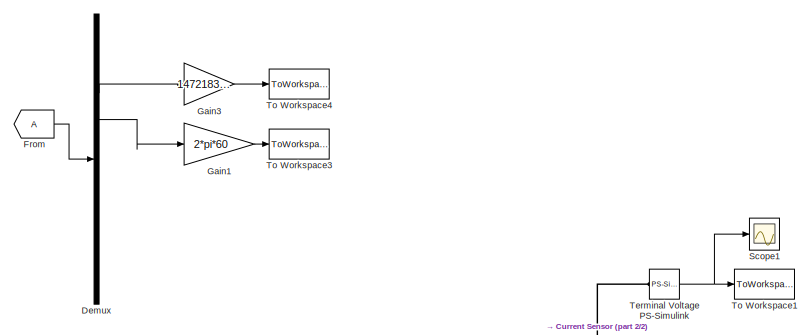
[diagram: root canvas - part 1/2, top center region]
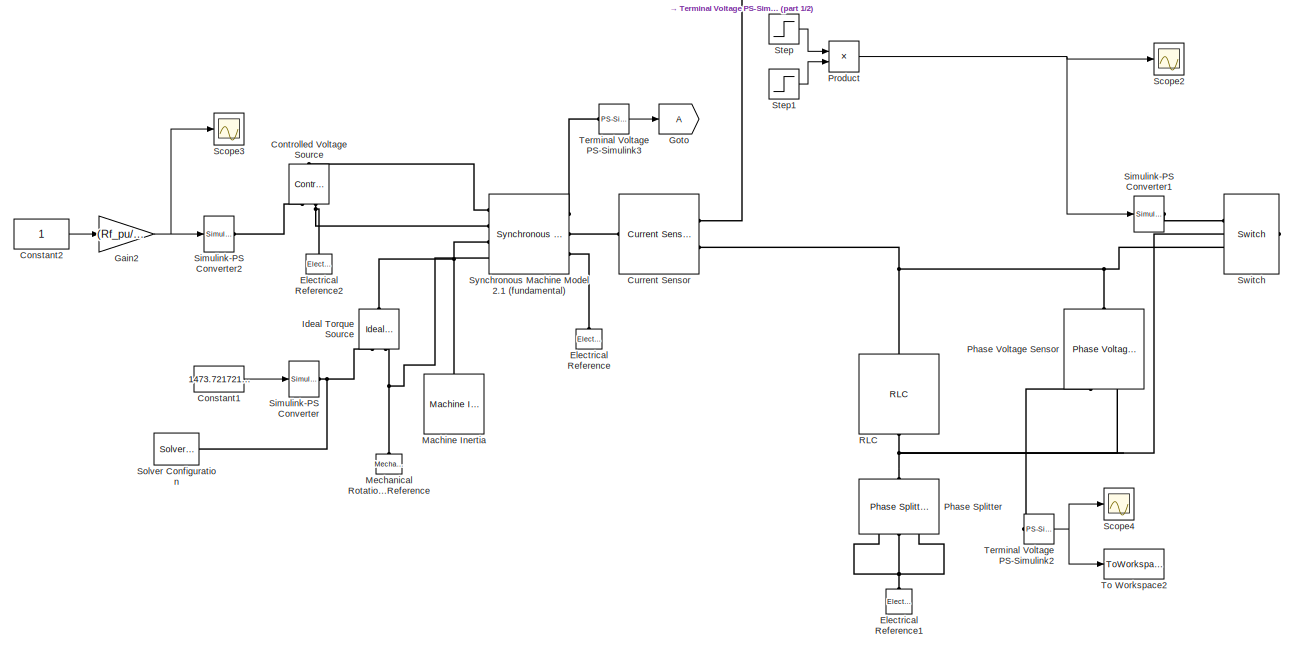
[diagram: root canvas - part 2/2, full width, bottom band]
MODEL slx_3ccbc62361c7
KIND model
CONFIG AbsTol = auto
CONFIG EnableMultiTasking = off
CONFIG FixedStep = 0.0001
CONFIG MaxStep = auto
CONFIG MinStep = auto
CONFIG RelTol = 1e-3
CONFIG SampleTimeConstraint = Unconstrained
CONFIG Solver = FixedStepAuto
CONFIG SolverName = FixedStepAuto
CONFIG StartTime = 0.0
CONFIG StopTime = 0.3
BLOCK [Constant] Constant1
  Value = 1473.7217213832537
BLOCK [Constant] Constant2
BLOCK [Reference] Controlled Voltage Source  REF=fl_lib/Electrical/Electrical Sources/Controlled Voltage
Source
  Ports = [0, 0, 0, 0, 0, 1, 2]
  SourceBlock = fl_lib/Electrical/Electrical Sources/Controlled Voltage\nSource
  SourceType = Controlled Voltage\nSource
BLOCK [Reference] Current Sensor  REF=pe_lib/Sensors/Current Sensor
  Ports = [0, 0, 0, 0, 0, 1, 2]
  SourceBlock = pe_lib/Sensors/Current Sensor
  SourceType = Current Sensor
BLOCK [Demux] Demux
  DisplayOption = bar
  Outputs = 10
  Ports = [1, 10]
BLOCK [Reference] Electrical Reference  REF=fl_lib/Electrical/Electrical Elements/Electrical Reference
  Ports = [0, 0, 0, 0, 0, 1]
  SourceBlock = fl_lib/Electrical/Electrical Elements/Electrical Reference
  SourceType = Electrical Reference
BLOCK [Reference] Electrical Reference1  REF=fl_lib/Electrical/Electrical Elements/Electrical Reference
  Ports = [0, 0, 0, 0, 0, 1]
  SourceBlock = fl_lib/Electrical/Electrical Elements/Electrical Reference
  SourceType = Electrical Reference
BLOCK [Reference] Electrical Reference2  REF=fl_lib/Electrical/Electrical Elements/Electrical Reference
  Ports = [0, 0, 0, 0, 0, 1]
  SourceBlock = fl_lib/Electrical/Electrical Elements/Electrical Reference
  SourceType = Electrical Reference
BLOCK [From] From
BLOCK [Gain] Gain1
  Gain = 2*pi*60
  OutDataTypeStr = Inherit: Inherit via internal rule
  ParamDataTypeStr = Inherit: Inherit via internal rule
  SaturateOnIntegerOverflow = off
BLOCK [Gain] Gain2
  Gain = (Rf_pu/Lmd_pu)*257198.07031934269
  OutDataTypeStr = Inherit: Inherit via internal rule
  ParamDataTypeStr = Inherit: Inherit via internal rule
  SaturateOnIntegerOverflow = off
BLOCK [Gain] Gain3
  Gain = 1472183.2236000320
  OutDataTypeStr = Inherit: Inherit via internal rule
  ParamDataTypeStr = Inherit: Inherit via internal rule
  SaturateOnIntegerOverflow = off
BLOCK [Goto] Goto
BLOCK [Reference] Ideal Torque Source  REF=fl_lib/Mechanical/Mechanical Sources/Ideal Torque Source
  Ports = [0, 0, 0, 0, 0, 1, 2]
  SourceBlock = fl_lib/Mechanical/Mechanical Sources/Ideal Torque Source
  SourceType = Ideal Torque Source
BLOCK [Reference] Machine Inertia  REF=pe_lib/Machines/Machine
Inertia
  Ports = [0, 0, 0, 0, 0, 1]
  SourceBlock = pe_lib/Machines/Machine\nInertia
  SourceType = Machine\nInertia
BLOCK [Reference] Mechanical Rotational Reference  REF=fl_lib/Mechanical/Rotational Elements/Mechanical
Rotational Reference
  Ports = [0, 0, 0, 0, 0, 1]
  SourceBlock = fl_lib/Mechanical/Rotational Elements/Mechanical\nRotational Reference
  SourceType = Mechanical\nRotational Reference
BLOCK [Reference] Phase Splitter  REF=pe_lib/Connections/Phase Splitter
  Ports = [0, 0, 0, 0, 0, 1, 3]
  SourceBlock = pe_lib/Connections/Phase Splitter
  SourceType = Phase Splitter
BLOCK [Reference] Phase Voltage Sensor  REF=pe_lib/Sensors/Phase Voltage Sensor
  Ports = [0, 0, 0, 0, 0, 1, 2]
  SourceBlock = pe_lib/Sensors/Phase Voltage Sensor
  SourceType = Phase Voltage Sensor
BLOCK [Product] Product
  InputSameDT = off
  OutDataTypeStr = Inherit: Inherit via internal rule
  Ports = [2, 1]
  RndMeth = Floor
  SaturateOnIntegerOverflow = off
BLOCK [Reference] RLC  REF=pe_lib/Passive Devices/RLC
  Ports = [0, 0, 0, 0, 0, 1, 1]
  SourceBlock = pe_lib/Passive Devices/RLC
  SourceType = RLC
BLOCK [Scope] Scope1
  NumInputPorts = 1
  Ports = [1]
  ScopeSpecificationString = Simulink.scopes.TimeScopeBlockCfg('CurrentConfiguration', extmgr.ConfigurationSet(extmgr.Configuration('Core','General UI',true),extmgr.Configuration('Core','Source UI',true),extmgr.Configuration('Sources','WiredSimulink',true,'DataLoggingVariableName','ScopeData1'),extmgr.Configuration('Visuals','Time Domain',true,'SerializedDisplays',{struct('MinYLimReal','-102337.78172','MaxYLimReal','100152.41...<+1899ch>
BLOCK [Scope] Scope2
  NumInputPorts = 1
  Ports = [1]
  ScopeSpecificationString = Simulink.scopes.TimeScopeBlockCfg('CurrentConfiguration', extmgr.ConfigurationSet(extmgr.Configuration('Core','General UI',true),extmgr.Configuration('Core','Source UI',true),extmgr.Configuration('Sources','WiredSimulink',true,'DataLoggingVariableName','ScopeData1'),extmgr.Configuration('Visuals','Time Domain',true,'SerializedDisplays',{struct('MinYLimReal','-1.00000','MaxYLimReal','1.00000','YLab...<+1704ch>
BLOCK [Scope] Scope3
  NumInputPorts = 1
  Ports = [1]
  ScopeSpecificationString = Simulink.scopes.TimeScopeBlockCfg('CurrentConfiguration', extmgr.ConfigurationSet(extmgr.Configuration('Core','General UI',true),extmgr.Configuration('Core','Source UI',true),extmgr.Configuration('Sources','WiredSimulink',true,'DataLoggingVariableName','ScopeData1'),extmgr.Configuration('Visuals','Time Domain',true,'SerializedDisplays',{struct('MinYLimReal','-102337.78172','MaxYLimReal','100152.41...<+1775ch>
BLOCK [Scope] Scope4
  NumInputPorts = 1
  Ports = [1]
  ScopeSpecificationString = Simulink.scopes.TimeScopeBlockCfg('CurrentConfiguration', extmgr.ConfigurationSet(extmgr.Configuration('Core','General UI',true),extmgr.Configuration('Core','Source UI',true),extmgr.Configuration('Sources','WiredSimulink',true,'DataLoggingVariableName','ScopeData3'),extmgr.Configuration('Visuals','Time Domain',true,'SerializedDisplays',{struct('MinYLimReal','-36629.00589','MaxYLimReal','36629.0077...<+1742ch>
BLOCK [Reference] Simulink-PS Converter  REF=nesl_utility/Simulink-PS
Converter
  Ports = [1, 0, 0, 0, 0, 0, 1]
  SourceBlock = nesl_utility/Simulink-PS\nConverter
  SourceType = Simulink-PS\nConverter
BLOCK [Reference] Simulink-PS Converter1  REF=nesl_utility/Simulink-PS
Converter
  Ports = [1, 0, 0, 0, 0, 0, 1]
  SourceBlock = nesl_utility/Simulink-PS\nConverter
  SourceType = Simulink-PS\nConverter
BLOCK [Reference] Simulink-PS Converter2  REF=nesl_utility/Simulink-PS
Converter
  Ports = [1, 0, 0, 0, 0, 0, 1]
  SourceBlock = nesl_utility/Simulink-PS\nConverter
  SourceType = Simulink-PS\nConverter
BLOCK [Reference] Solver Configuration  REF=nesl_utility/Solver
Configuration
  Ports = [0, 0, 0, 0, 0, 0, 1]
  SourceBlock = nesl_utility/Solver\nConfiguration
  SourceType = Solver\nConfiguration
BLOCK [Step] Step
  SampleTime = 0
  Time = 0.1
BLOCK [Step] Step1
  After = 0
  Before = 1
  SampleTime = 0
  Time = 0.2
BLOCK [Reference] Switch  REF=pe_lib/Switches & Breakers/Switch
  Ports = [0, 0, 0, 0, 0, 2, 1]
  SourceBlock = pe_lib/Switches & Breakers/Switch
  SourceType = Switch
BLOCK [Reference] Synchronous Machine Model 2.1 (fundamental)  REF=pe_lib/Machines/Synchronous
Machine
(Simplified)/Synchronous Machine
Model 2.1
(fundamental)
  Ports = [0, 0, 0, 0, 0, 4, 3]
  SourceBlock = pe_lib/Machines/Synchronous\nMachine\n(Simplified)/Synchronous Machine\nModel 2.1\n(fundamental)
  SourceType = Synchronous Machine\nModel 2.1\n(fundamental)
BLOCK [Reference] Terminal Voltage PS-Simulink  REF=nesl_utility/PS-Simulink
Converter
  Ports = [0, 1, 0, 0, 0, 1]
  SourceBlock = nesl_utility/PS-Simulink\nConverter
  SourceType = PS-Simulink\nConverter
BLOCK [Reference] Terminal Voltage PS-Simulink2  REF=nesl_utility/PS-Simulink
Converter
  Ports = [0, 1, 0, 0, 0, 1]
  SourceBlock = nesl_utility/PS-Simulink\nConverter
  SourceType = PS-Simulink\nConverter
BLOCK [Reference] Terminal Voltage PS-Simulink3  REF=nesl_utility/PS-Simulink
Converter
  Ports = [0, 1, 0, 0, 0, 1]
  SourceBlock = nesl_utility/PS-Simulink\nConverter
  SourceType = PS-Simulink\nConverter
BLOCK [ToWorkspace] To Workspace1
  FixptAsFi = on
  MaxDataPoints = inf
  Ports = [1]
  SampleTime = -1
  Save2DSignal = 3-D array (concatenate along third dimension)
  VariableName = currents
BLOCK [ToWorkspace] To Workspace2
  FixptAsFi = on
  MaxDataPoints = inf
  Ports = [1]
  SampleTime = -1
  Save2DSignal = 3-D array (concatenate along third dimension)
  VariableName = voltages
BLOCK [ToWorkspace] To Workspace3
  FixptAsFi = on
  MaxDataPoints = inf
  Ports = [1]
  SampleTime = -1
  Save2DSignal = 3-D array (concatenate along third dimension)
  VariableName = speed
BLOCK [ToWorkspace] To Workspace4
  FixptAsFi = on
  MaxDataPoints = inf
  Ports = [1]
  SampleTime = -1
  Save2DSignal = 3-D array (concatenate along third dimension)
  VariableName = torque
LINE Constant1:1 -> Simulink-PS Converter:1
LINE Constant2:1 -> Gain2:1
LINE Demux:3 -> Gain3:1
LINE Demux:4 -> Gain1:1
LINE From:1 -> Demux:1
LINE Gain1:1 -> To Workspace3:1
NET Gain2:1 -> Scope3:1, Simulink-PS Converter2:1
LINE Gain3:1 -> To Workspace4:1
NET Product:1 -> Scope2:1, Simulink-PS Converter1:1
LINE Step1:1 -> Product:2
LINE Step:1 -> Product:1
NET Terminal Voltage PS-Simulink2:1 -> Scope4:1, To Workspace2:1
LINE Terminal Voltage PS-Simulink3:1 -> Goto:1
NET Terminal Voltage PS-Simulink:1 -> Scope1:1, To Workspace1:1
PLINE Controlled Voltage Source:LConn1 -- Synchronous Machine Model 2.1 (fundamental):LConn1
PLINE Controlled Voltage Source:RConn1 -- Simulink-PS Converter2:RConn1
PNET net1: Controlled Voltage Source:RConn2 -- Electrical Reference2:LConn1 -- Synchronous Machine Model 2.1 (fundamental):LConn2
PLINE Current Sensor:LConn1 -- Synchronous Machine Model 2.1 (fundamental):RConn2
PLINE Current Sensor:RConn1 -- Terminal Voltage PS-Simulink:LConn1
PNET net2: Current Sensor:RConn2 -- Phase Voltage Sensor:LConn1 -- RLC:LConn1 -- Switch:LConn2
PNET net3: Electrical Reference1:LConn1 -- Phase Splitter:RConn1 -- Phase Splitter:RConn2 -- Phase Splitter:RConn3
PLINE Electrical Reference:LConn1 -- Synchronous Machine Model 2.1 (fundamental):RConn3
PNET net4: Ideal Torque Source:LConn1 -- Machine Inertia:LConn1 -- Synchronous Machine Model 2.1 (fundamental):LConn3
PNET net5: Ideal Torque Source:RConn1 -- Simulink-PS Converter:RConn1 -- Solver Configuration:RConn1
PNET net6: Ideal Torque Source:RConn2 -- Mechanical Rotational Reference:LConn1 -- Synchronous Machine Model 2.1 (fundamental):LConn4
PNET net7: Phase Splitter:LConn1 -- Phase Voltage Sensor:RConn2 -- RLC:RConn1 -- Switch:RConn1
PLINE Phase Voltage Sensor:RConn1 -- Terminal Voltage PS-Simulink2:LConn1
PLINE Simulink-PS Converter1:RConn1 -- Switch:LConn1
PLINE Synchronous Machine Model 2.1 (fundamental):RConn1 -- Terminal Voltage PS-Simulink3:LConn1
note: NET lines group one-source signal fan-out (src -> all destinations, sorted); 1:1 wires keep LINE; PNET lines group multi-terminal physical nets as a canonical sorted terminal list (undirected conserving connections); 2-terminal nets keep the pairwise PLINE form
